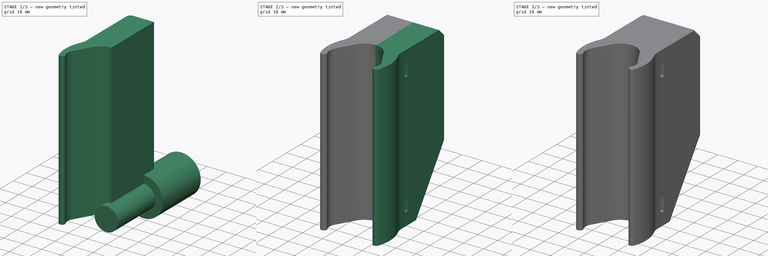
[diagram: build sequence overview — one tinted view per stage of 3, left to right]
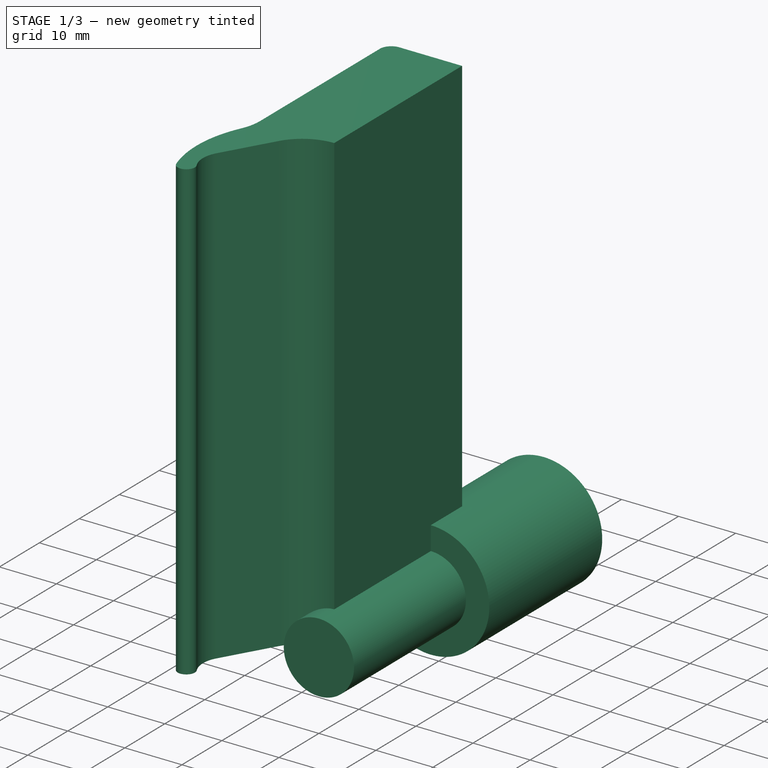
[diagram: stage 1 of 3 — iso view after this stage's code; geometry added in this stage tinted green]
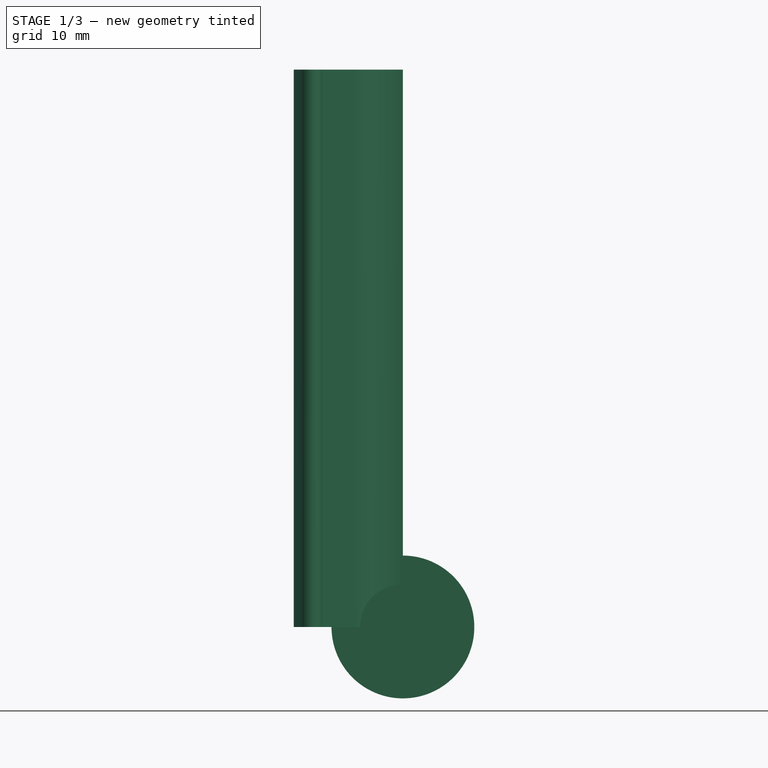
[diagram: stage 1 of 3 — front view after this stage's code; geometry added in this stage tinted green]
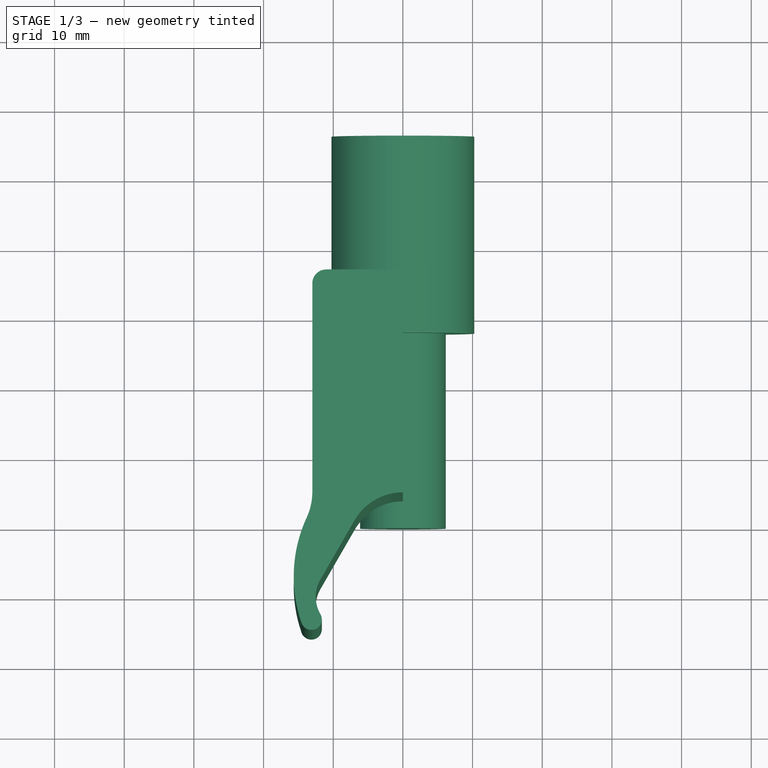
[diagram: stage 1 of 3 — top view after this stage's code; geometry added in this stage tinted green]
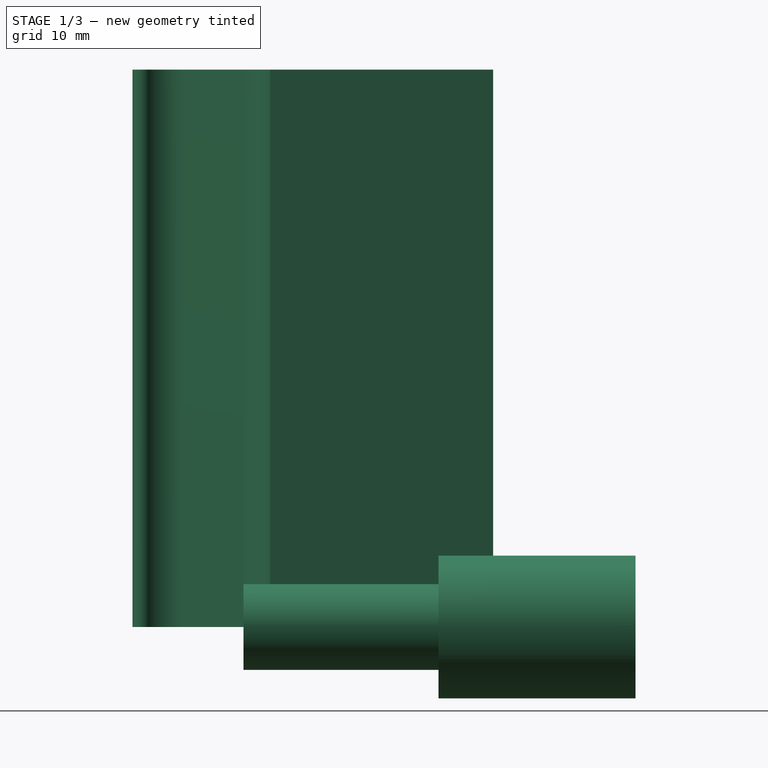
[diagram: stage 1 of 3 — right view after this stage's code; geometry added in this stage tinted green]
FCSTD DOCUMENT  (FreeCAD 0.20R29177 (Git))
Label: Schirmhalter
License: All rights reserved
LicenseURL: http://en.wikipedia.org/wiki/All_rights_reserved
objects: Sketcher::SketchObject×3, PartDesign::Body×2, Part::Fillet×2, PartDesign::Pad×1, PartDesign::Mirrored×1, PartDesign::Pocket×1, PartDesign::Revolution×1, Part::Cut×1
note: 15 computed .brp shape members not serialized (recipe doc carries the construction recipe); baked Part::Feature solids carry a one-line shape summary decoded from their .brp

FEATURE [Sketcher::SketchObject] Sketch
  FullyConstrained = false
  MapMode = 5
  Support = -> [XY_Plane]
  sketch-geometry (11):
    g0: ArcOfCircle CenterX=0 CenterY=-4.17 CenterZ=0 NormalX=0 NormalY=0 NormalZ=1 AngleXU=0 Radius=8 StartAngle=1.5708 EndAngle=2.61799
    g1: LineSegment StartX=-6.9282 StartY=-0.17 StartZ=0 EndX=-11.8357 EndY=-8.67 EndZ=0
    g2: ArcOfCircle CenterX=-7.50555 CenterY=-11.17 CenterZ=0 NormalX=0 NormalY=0 NormalZ=1 AngleXU=0 Radius=5 StartAngle=2.61799 EndAngle=3.66519
    g3: GeomPoint X=-12.5056 Y=-11.17 Z=0
    g4: ArcOfCircle CenterX=-13.1347 CenterY=-14.42 CenterZ=0 NormalX=0 NormalY=0 NormalZ=1 AngleXU=0 Radius=1.5 StartAngle=3.476 EndAngle=6.80678
    g5: ArcOfCircle CenterX=4.58716 CenterY=-8.2624 CenterZ=0 NormalX=0 NormalY=0 NormalZ=1 AngleXU=0 Radius=20.2612 StartAngle=2.70896 EndAngle=3.476
    g6: ArcOfCircle CenterX=-21.762 CenterY=3.90581 CenterZ=0 NormalX=0 NormalY=0 NormalZ=1 AngleXU=0 Radius=8.76201 StartAngle=5.85056 EndAngle=6.28319
    g7: LineSegment StartX=-13 StartY=3.90581 StartZ=0 EndX=-13 EndY=33.83 EndZ=0
    g8: ArcOfCircle CenterX=-11 CenterY=33.83 CenterZ=0 NormalX=0 NormalY=0 NormalZ=1 AngleXU=0 Radius=2 StartAngle=1.5708 EndAngle=3.14159
    g9: LineSegment StartX=-11 StartY=35.83 StartZ=0 EndX=0 EndY=35.83 EndZ=0
    g10: LineSegment StartX=0 StartY=35.83 StartZ=0 EndX=5e-16 EndY=3.83 EndZ=0
  constraints (28):
    c: PointOnObject(g0,g-2)
    c: PointOnObject(g0,g-2)
    c: Radius(g0) = 8
    c: Tangent(g1,g0) = -1.5708
    c: DistanceY(g-1,g0) = 3.83
    c: Tangent(g2,g1) = -1.5708
    c: PointOnObject(g3,g2)
    c: Horizontal(g3,g2)
    c: Vertical(g1,g2)
    c: DistanceY(g2,g1) = 5
    c: Radius(g2) = 5
    c: DistanceY(g3,g0) = 15
    c: Tangent(g4,g2) = 1.5708
    c: Radius(g4) = 1.5
    c: Tangent(g5,g4) = -1.5708
    c: Horizontal(g6,g6)
    c: Tangent(g6,g5) = 1.5708
    c: DistanceX(g6,g-1) = 13
    c: Coincident(g7,g6)
    c: Vertical(g7)
    c: PointOnObject(g9,g-2)
    c: Horizontal(g9)
    c: Tangent(g8,g7) = 1.5708
    c: Tangent(g9,g8) = 1.5708
    c: DistanceY(g0,g9) = 32
    c: Coincident(g10,g9)
    c: Coincident(g10,g0)
    c: Radius(g8) = 2
FEATURE [PartDesign::Pad] Pad
  Direction = (0,0,1)
  Length = 80
  Length2 = 10
  Profile = -> Sketch
  ReferenceAxis = -> Sketch [N_Axis]
  Type = 0
FEATURE [PartDesign::Body] Body
  Group = -> [Sketch,Pad,Mirrored,Sketch001,Pocket]
  Origin = -> Origin
  Tip = -> Pocket
FEATURE [Sketcher::SketchObject] Sketch002
  FullyConstrained = false
  MapMode = 5
  Placement = pos=(0,0,0) rot=(0.57735,0.57735,0.57735;2.0944rad)
  Support = -> [YZ_Plane001]
  expr: Constraints[13] = 12.3 / 2
  sketch-geometry (6):
    g0: LineSegment StartX=0 StartY=0 StartZ=0 EndX=0 EndY=6.15 EndZ=0
    g1: LineSegment StartX=0 StartY=6.15 StartZ=0 EndX=28 EndY=6.15 EndZ=0
    g2: LineSegment StartX=28 StartY=6.15 StartZ=0 EndX=28 EndY=10.25 EndZ=0
    g3: LineSegment StartX=28 StartY=10.25 StartZ=0 EndX=56.2603 EndY=10.25 EndZ=0
    g4: LineSegment StartX=56.2603 StartY=10.25 StartZ=0 EndX=56.2603 EndY=0 EndZ=0
    g5: LineSegment StartX=56.2603 StartY=0 StartZ=0 EndX=0 EndY=0 EndZ=0
  constraints (16):
    c: Coincident(g-1,g0)
    c: PointOnObject(g0,g-2)
    c: Coincident(g0,g1)
    c: Horizontal(g1)
    c: Coincident(g1,g2)
    c: Vertical(g2)
    c: Coincident(g2,g3)
    c: Horizontal(g3)
    c: Coincident(g3,g4)
    c: PointOnObject(g4,g-1)
    c: Vertical(g4)
    c: Coincident(g4,g5)
    c: Coincident(g5,g0)
    c: DistanceY(g0,g0) = 6.15
    c: DistanceY(g4,g3) = 10.25
    c: DistanceX(g0,g1) = 28
FEATURE [PartDesign::Revolution] Revolution
  Angle = 360
  Axis = (3e-16,1,-2e-16)
  Base = (0,0,0)
  Placement = pos=(0,0,0) rot=(0.57735,0.57735,0.57735;2.0944rad)
  Profile = -> Sketch002
  ReferenceAxis = -> Sketch002 [H_Axis]
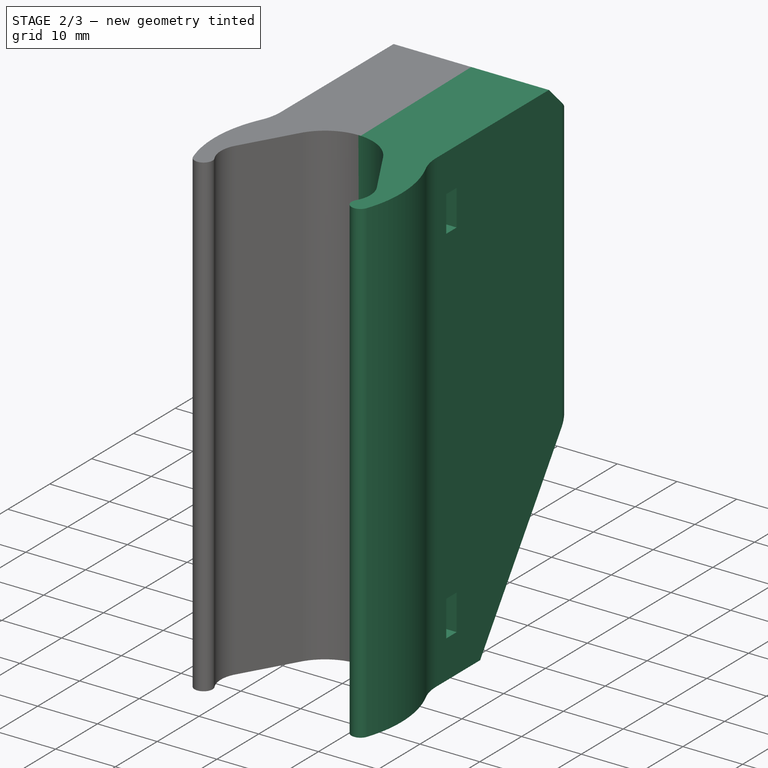
[diagram: stage 2 of 3 — iso view after this stage's code; geometry added in this stage tinted green]
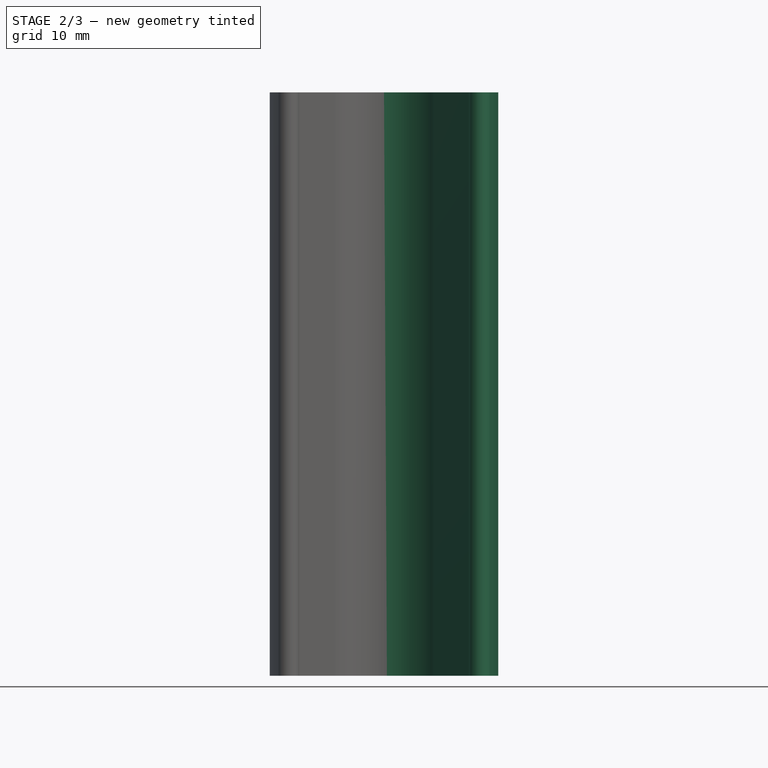
[diagram: stage 2 of 3 — front view after this stage's code; geometry added in this stage tinted green]
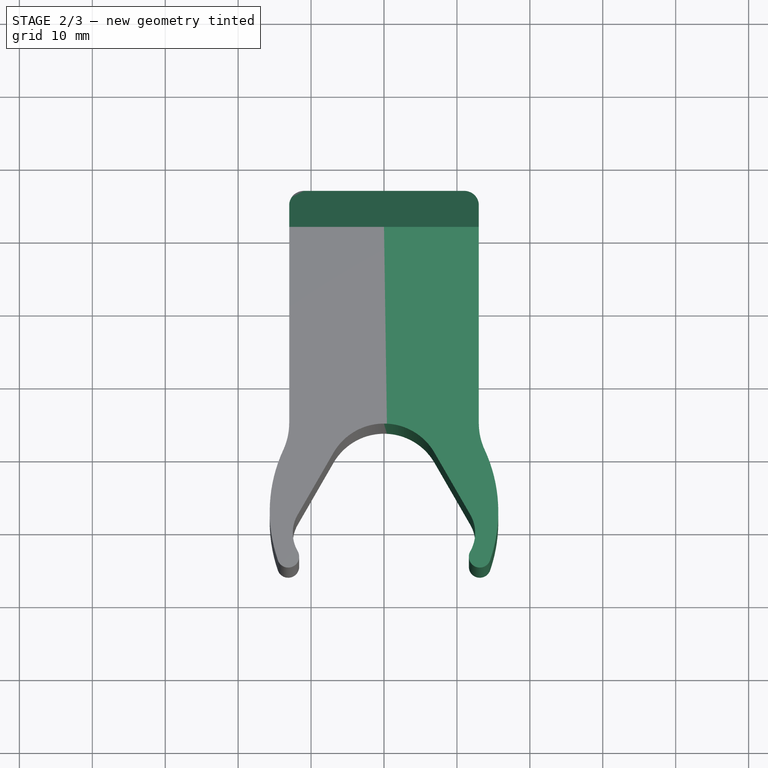
[diagram: stage 2 of 3 — top view after this stage's code; geometry added in this stage tinted green]
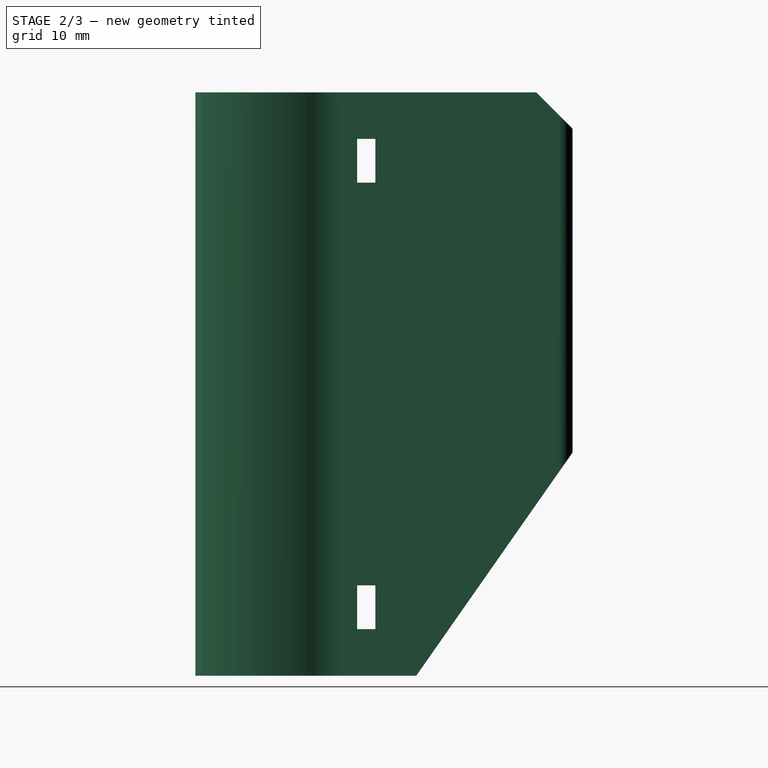
[diagram: stage 2 of 3 — right view after this stage's code; geometry added in this stage tinted green]
FEATURE [PartDesign::Mirrored] Mirrored
  BaseFeature = -> Pad
  MirrorPlane = -> Sketch [V_Axis]
  Originals = -> [Pad]
FEATURE [Sketcher::SketchObject] Sketch001
  ExternalGeometry = -> [Mirrored]
  FullyConstrained = false
  MapMode = 5
  Placement = pos=(13,0,0) rot=(0.57735,0.57735,0.57735;2.0944rad)
  Support = -> [Mirrored]
  expr: Constraints[30] = 135
  sketch-geometry (14):
    g0: LineSegment StartX=6.26646 StartY=73.6118 StartZ=0 EndX=8.76646 EndY=73.6118 EndZ=0
    g1: LineSegment StartX=8.76646 StartY=73.6118 StartZ=0 EndX=8.76646 EndY=67.6118 EndZ=0
    g2: LineSegment StartX=8.76646 StartY=67.6118 StartZ=0 EndX=6.26646 EndY=67.6118 EndZ=0
    g3: LineSegment StartX=6.26646 StartY=67.6118 StartZ=0 EndX=6.26646 EndY=73.6118 EndZ=0
    g4: LineSegment StartX=6.26646 StartY=12.3882 StartZ=0 EndX=8.76646 EndY=12.3882 EndZ=0
    g5: LineSegment StartX=8.76646 StartY=12.3882 StartZ=0 EndX=8.76646 EndY=6.38818 EndZ=0
    g6: LineSegment StartX=8.76646 StartY=6.38818 StartZ=0 EndX=6.26646 EndY=6.38818 EndZ=0
    g7: LineSegment StartX=6.26646 StartY=6.38818 StartZ=0 EndX=6.26646 EndY=12.3882 EndZ=0
    g8: LineSegment StartX=9.06225 StartY=-7.59654 StartZ=0 EndX=45.1727 EndY=43.9746 EndZ=0
    g9: LineSegment StartX=45.1727 StartY=43.9746 StartZ=0 EndX=45.1727 EndY=-7.59654 EndZ=0
    g10: LineSegment StartX=45.1727 StartY=-7.59654 StartZ=0 EndX=9.06225 EndY=-7.59654 EndZ=0
    g11: LineSegment StartX=20.4807 StartY=90.3293 StartZ=0 EndX=40.5833 EndY=70.2267 EndZ=0
    g12: LineSegment StartX=40.5833 StartY=70.2267 StartZ=0 EndX=40.5833 EndY=96.4184 EndZ=0
    g13: LineSegment StartX=40.5833 StartY=96.4184 StartZ=0 EndX=20.4807 EndY=90.3293 EndZ=0
  constraints (31):
    c: Coincident(g0,g1)
    c: Coincident(g1,g2)
    c: Coincident(g2,g3)
    c: Coincident(g3,g0)
    c: Horizontal(g0)
    c: Horizontal(g2)
    c: Vertical(g1)
    c: Vertical(g3)
    c: Coincident(g4,g5)
    c: Coincident(g5,g6)
    c: Coincident(g6,g7)
    c: Coincident(g7,g4)
    c: Horizontal(g4)
    c: Horizontal(g6)
    c: Vertical(g5)
    c: Vertical(g7)
    c: DistanceY(g1,g1) = 6
    c: DistanceX(g0,g0) = 2.5
    c: Equal(g5,g1)
    c: Equal(g4,g0)
    c: Coincident(g8,g9)
    c: Vertical(g9)
    c: Coincident(g9,g10)
    c: Coincident(g10,g8)
    c: Perpendicular(g9,g10)
    c: Angle(g10,g8) = 0.959931
    c: Coincident(g11,g12)
    c: Vertical(g12)
    c: Coincident(g12,g13)
    c: Coincident(g13,g11)
    c: Angle(g-3,g11) = 2.35619
FEATURE [PartDesign::Pocket] Pocket
  BaseFeature = -> Mirrored
  Direction = (-1,0,0)
  Length = 5
  Length2 = 5
  Profile = -> Sketch001
  ReferenceAxis = -> Sketch001 [N_Axis]
  Type = 1
FEATURE [PartDesign::Body] Body001
  Group = -> [Sketch002,Revolution]
  Origin = -> Origin001
  Placement = pos=(0,9,31) rot=(1,0,0;0.785398rad)
  Tip = -> Revolution
FEATURE [Part::Cut] Cut
  Base = -> Body
  Tool = -> Body001
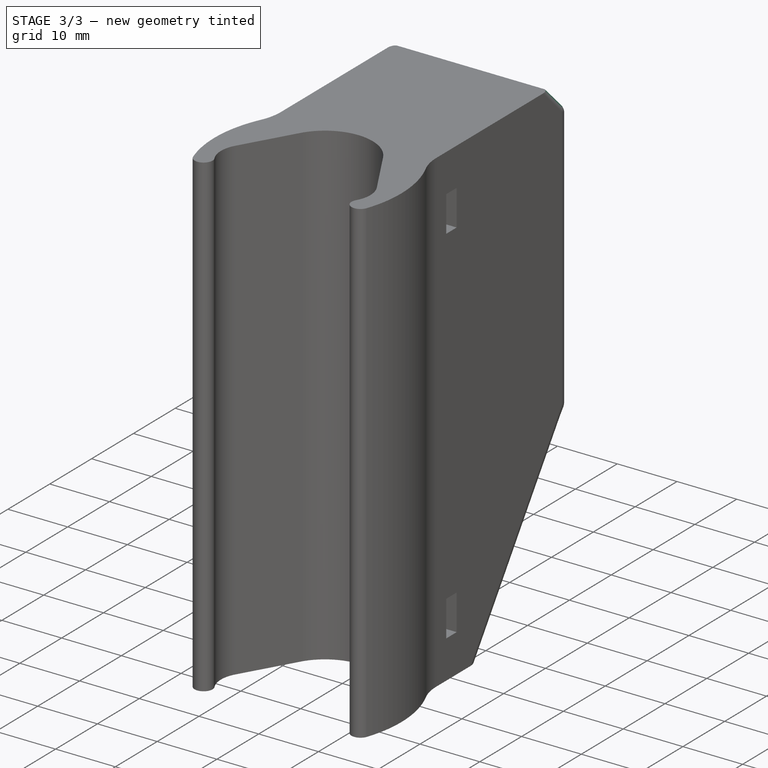
[diagram: stage 3 of 3 — iso view after this stage's code; geometry added in this stage tinted green]
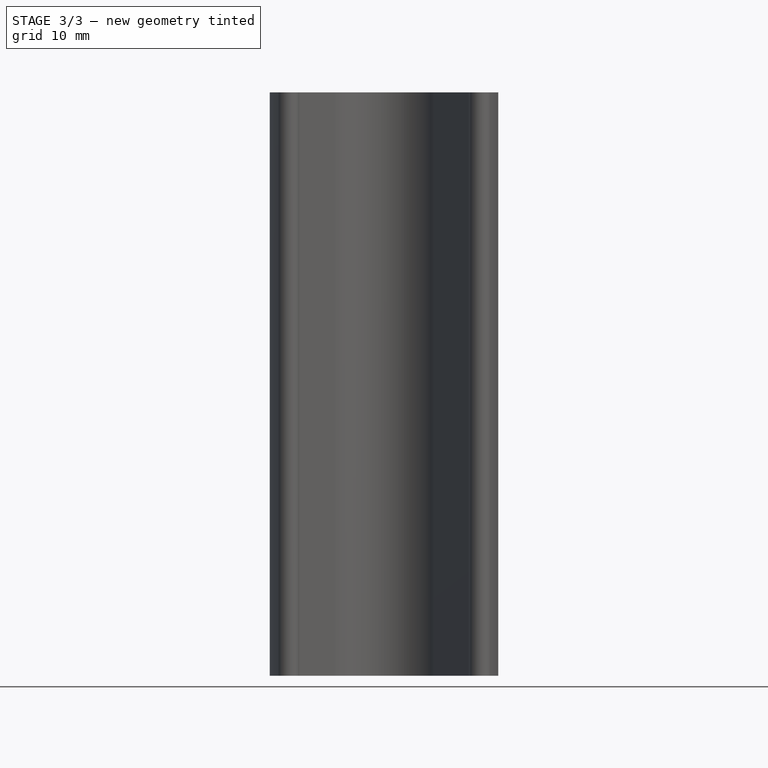
[diagram: stage 3 of 3 — front view after this stage's code; geometry added in this stage tinted green]
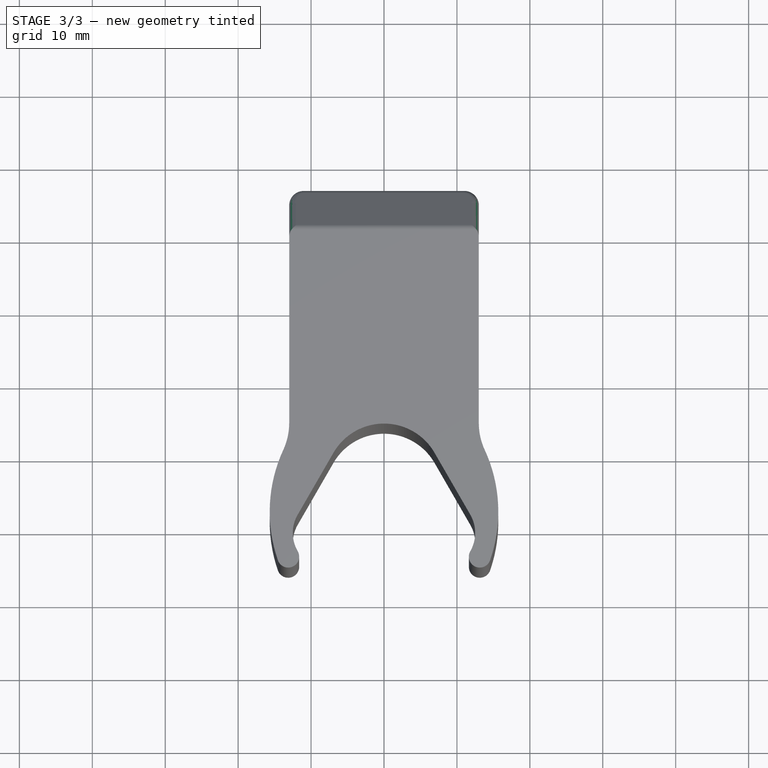
[diagram: stage 3 of 3 — top view after this stage's code; geometry added in this stage tinted green]
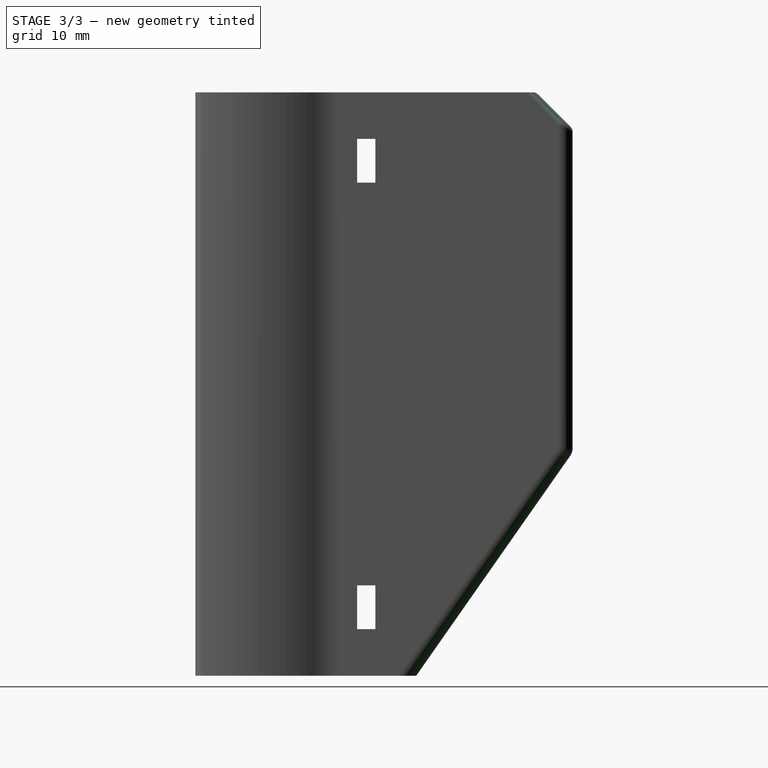
[diagram: stage 3 of 3 — right view after this stage's code; geometry added in this stage tinted green]
FEATURE [Part::Fillet] Fillet
  Base = -> Cut
  Edges = 2 edges r=2: [Edge44,Edge55]
FEATURE [Part::Fillet] Fillet001
  Base = -> Fillet
  Edges = 8 edges r=1: [Edge16,Edge56,Edge60,Edge61,Edge62,Edge63,Edge64,Edge65]
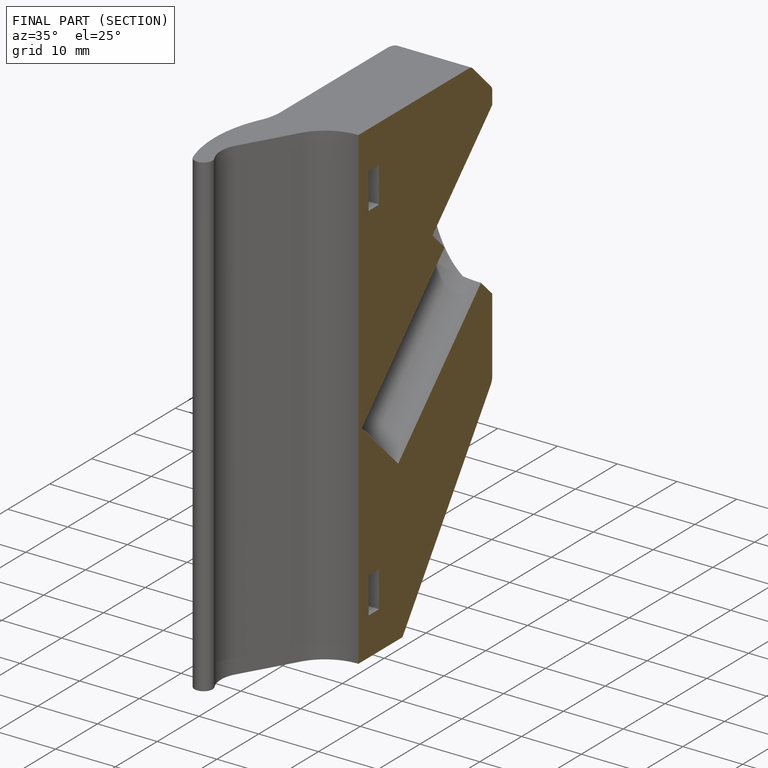
[diagram: finished part — half-section view (interior)]
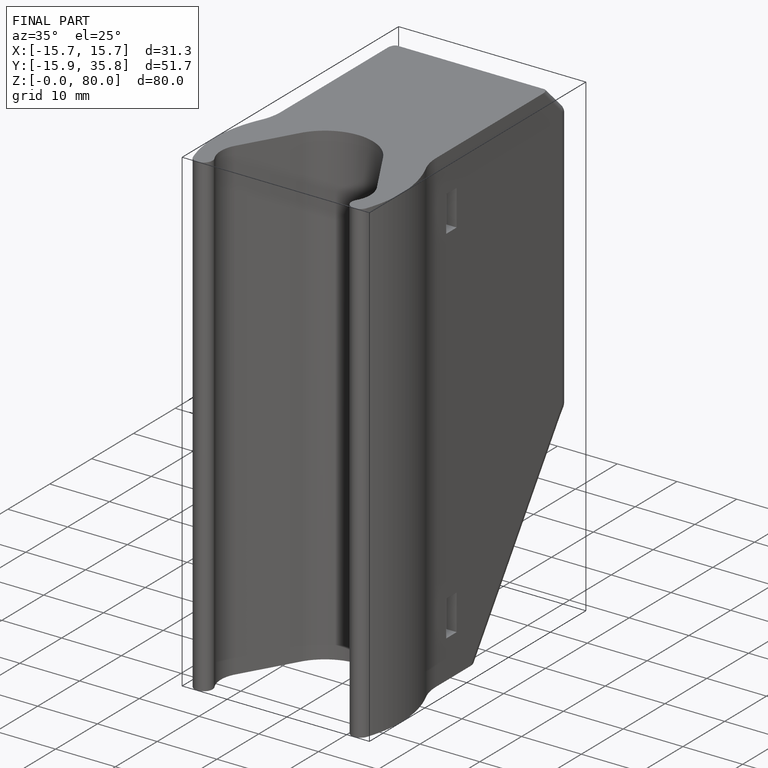
[diagram: finished part — iso view with bounding-box wireframe]
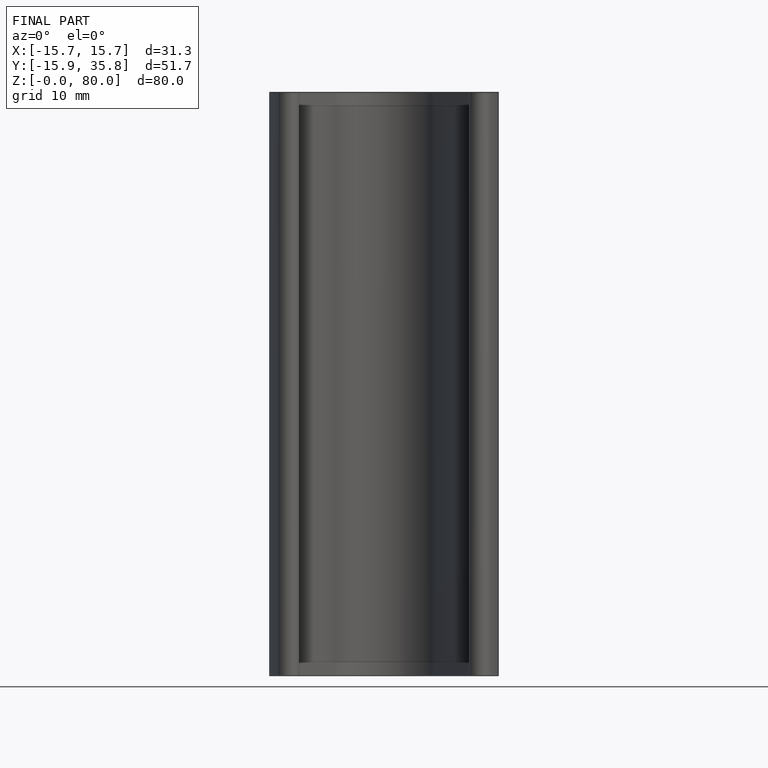
[diagram: finished part — front view with bounding-box wireframe]
